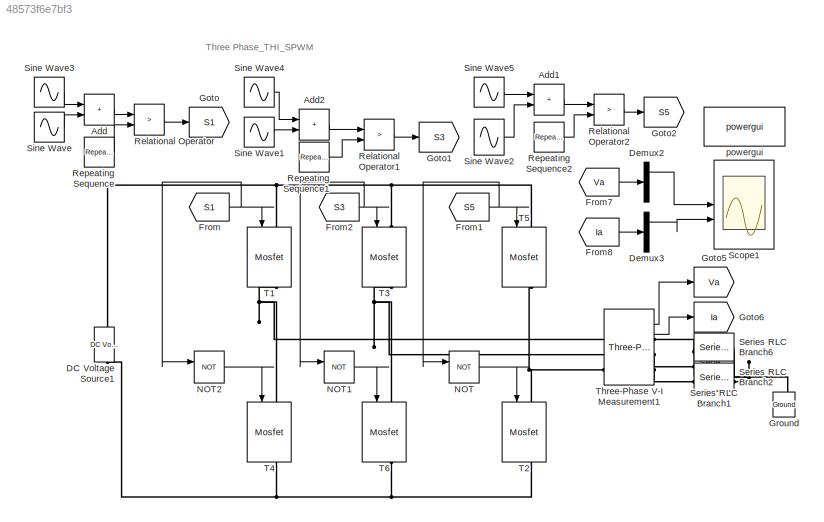
MODEL slx_48573f6e7bf3
KIND model
CONFIG AbsTol = auto
CONFIG EnableMultiTasking = off
CONFIG FixedStep = auto
CONFIG MaxStep = 1e-4
CONFIG MinStep = auto
CONFIG RelTol = 1e-3
CONFIG SampleTimeConstraint = Unconstrained
CONFIG SolverName = ode23t
CONFIG StartTime = 0.0
CONFIG StopTime = 0.1
BLOCK [Sum] Add
  IconShape = rectangular
BLOCK [Sum] Add1
  IconShape = rectangular
BLOCK [Sum] Add2
  IconShape = rectangular
BLOCK [Reference] DC Voltage Source1  REF=spsDCVoltageSourceLib/DC Voltage Source
  LibrarySourceBlock = sps_lib/Sources/DC Voltage Source
  SourceBlock = spsDCVoltageSourceLib/DC Voltage Source
  SourceType = DC Voltage Source
BLOCK [Demux] Demux2
  Outputs = 3
BLOCK [Demux] Demux3
  Outputs = 3
BLOCK [From] From
  GotoTag = S1
BLOCK [From] From1
  GotoTag = S5
BLOCK [From] From2
  GotoTag = S3
BLOCK [From] From7
  GotoTag = Va
BLOCK [From] From8
  GotoTag = Ia
BLOCK [Goto] Goto
  GotoTag = S1
BLOCK [Goto] Goto1
  GotoTag = S3
BLOCK [Goto] Goto2
  GotoTag = S5
BLOCK [Goto] Goto5
  GotoTag = Va
BLOCK [Goto] Goto6
  GotoTag = Ia
BLOCK [Reference] Ground  REF=spsGroundLib/Ground
  LibrarySourceBlock = sps_lib/Utilities/Ground
  NameLocation = right
  SourceBlock = spsGroundLib/Ground
  SourceType = Ground
BLOCK [Logic] NOT
  AllPortsSameDT = off
  Operator = NOT
  OutDataTypeStr = boolean
BLOCK [Logic] NOT1
  AllPortsSameDT = off
  Operator = NOT
  OutDataTypeStr = boolean
BLOCK [Logic] NOT2
  AllPortsSameDT = off
  Operator = NOT
  OutDataTypeStr = boolean
BLOCK [RelationalOperator] Relational Operator
  InputSameDT = off
  Operator = >
  OutDataTypeStr = boolean
  RndMeth = Simplest
BLOCK [RelationalOperator] Relational Operator1
  InputSameDT = off
  Operator = >
  OutDataTypeStr = boolean
  RndMeth = Simplest
BLOCK [RelationalOperator] Relational Operator2
  InputSameDT = off
  Operator = >
  OutDataTypeStr = boolean
  RndMeth = Simplest
BLOCK [Reference] Repeating Sequence  REF=simulink/Sources/Repeating
Sequence
  SourceBlock = simulink/Sources/Repeating\nSequence
  SourceType = Repeating table
BLOCK [Reference] Repeating Sequence1  REF=simulink/Sources/Repeating
Sequence
  SourceBlock = simulink/Sources/Repeating\nSequence
  SourceType = Repeating table
BLOCK [Reference] Repeating Sequence2  REF=simulink/Sources/Repeating
Sequence
  SourceBlock = simulink/Sources/Repeating\nSequence
  SourceType = Repeating table
BLOCK [Scope] Scope1
  Floating = off
  NumInputPorts = 2
  ScopeSpecificationString = Simulink.scopes.TimeScopeBlockCfg('CurrentConfiguration', extmgr.ConfigurationSet(extmgr.Configuration('Core','General UI',true),extmgr.Configuration('Core','Source UI',true),extmgr.Configuration('Sources','WiredSimulink',true,'DataLoggingVariableName','ScopeData1'),extmgr.Configuration('Visuals','Time Domain',true,'SerializedDisplays',{struct('MinYLimReal','-82.50809','MaxYLimReal','82.50809','YL...<+2118ch>
BLOCK [Reference] Series RLC Branch1  REF=spsSeriesRLCBranchLib/Series RLC Branch
  LibrarySourceBlock = sps_lib/Passives/Series RLC Branch
  SourceBlock = spsSeriesRLCBranchLib/Series RLC Branch
  SourceType = Series RLC Branch
BLOCK [Reference] Series RLC Branch2  REF=spsSeriesRLCBranchLib/Series RLC Branch
  LibrarySourceBlock = sps_lib/Passives/Series RLC Branch
  SourceBlock = spsSeriesRLCBranchLib/Series RLC Branch
  SourceType = Series RLC Branch
BLOCK [Reference] Series RLC Branch6  REF=spsSeriesRLCBranchLib/Series RLC Branch
  LibrarySourceBlock = sps_lib/Passives/Series RLC Branch
  SourceBlock = spsSeriesRLCBranchLib/Series RLC Branch
  SourceType = Series RLC Branch
BLOCK [Sin] Sine Wave
  Amplitude = 1.15
  Frequency = 100*pi
  SampleTime = 0
BLOCK [Sin] Sine Wave1
  Amplitude = 1.15
  Frequency = 100*pi
  Phase = 120*pi/180
  SampleTime = 0
BLOCK [Sin] Sine Wave2
  Amplitude = 1.15
  Frequency = 100*pi
  Phase = 240*pi/180
  SampleTime = 0
BLOCK [Sin] Sine Wave3
  Amplitude = 0.19
  Frequency = 100*pi*3
  SampleTime = 0
BLOCK [Sin] Sine Wave4
  Amplitude = 0.19
  Frequency = 100*pi*3
  Phase = 120*pi/180
  SampleTime = 0
BLOCK [Sin] Sine Wave5
  Amplitude = 0.19
  Frequency = 100*pi*3
  Phase = 240*pi/180
  SampleTime = 0
BLOCK [Reference] T1  REF=spsMosfetLib/Mosfet
  LibrarySourceBlock = sps_lib/Power Electronics/Mosfet
  NameLocation = left
  SourceBlock = spsMosfetLib/Mosfet
  SourceType = Mosfet
BLOCK [Reference] T2  REF=spsMosfetLib/Mosfet
  LibrarySourceBlock = sps_lib/Power Electronics/Mosfet
  NameLocation = left
  SourceBlock = spsMosfetLib/Mosfet
  SourceType = Mosfet
BLOCK [Reference] T3  REF=spsMosfetLib/Mosfet
  LibrarySourceBlock = sps_lib/Power Electronics/Mosfet
  NameLocation = left
  SourceBlock = spsMosfetLib/Mosfet
  SourceType = Mosfet
BLOCK [Reference] T4  REF=spsMosfetLib/Mosfet
  LibrarySourceBlock = sps_lib/Power Electronics/Mosfet
  NameLocation = left
  SourceBlock = spsMosfetLib/Mosfet
  SourceType = Mosfet
BLOCK [Reference] T5  REF=spsMosfetLib/Mosfet
  LibrarySourceBlock = sps_lib/Power Electronics/Mosfet
  NameLocation = left
  SourceBlock = spsMosfetLib/Mosfet
  SourceType = Mosfet
BLOCK [Reference] T6  REF=spsMosfetLib/Mosfet
  LibrarySourceBlock = sps_lib/Power Electronics/Mosfet
  NameLocation = left
  SourceBlock = spsMosfetLib/Mosfet
  SourceType = Mosfet
BLOCK [Reference] Three-Phase V-I Measurement1  REF=spsThreePhaseVIMeasurementLib/Three-Phase
V-I Measurement
  LibrarySourceBlock = sps_lib/Sensors and Measurements/Three-Phase\nV-I Measurement
  SourceBlock = spsThreePhaseVIMeasurementLib/Three-Phase\nV-I Measurement
  SourceType = Three-Phase VI Measurement
BLOCK [Reference] powergui  REF=sps_lib/powergui
  Priority = 1
  SourceBlock = sps_lib/powergui
  SourceType = PSB option menu block
ANNOTATION (root): Three Phase_THI_SPWM
LINE Add1:1 -> Relational Operator2:1
LINE Add2:1 -> Relational Operator1:1
LINE Add:1 -> Relational Operator:1
LINE Demux2:1 -> Scope1:1
LINE Demux3:1 -> Scope1:2
NET From1:1 -> NOT:1, T5:1
NET From2:1 -> NOT1:1, T3:1
LINE From7:1 -> Demux2:1
LINE From8:1 -> Demux3:1
NET From:1 -> NOT2:1, T1:1
LINE NOT1:1 -> T6:1
LINE NOT2:1 -> T4:1
LINE NOT:1 -> T2:1
LINE Relational Operator1:1 -> Goto1:1
LINE Relational Operator2:1 -> Goto2:1
LINE Relational Operator:1 -> Goto:1
LINE Repeating Sequence1:1 -> Relational Operator1:2
LINE Repeating Sequence2:1 -> Relational Operator2:2
LINE Repeating Sequence:1 -> Relational Operator:2
LINE Sine Wave1:1 -> Add2:2
LINE Sine Wave2:1 -> Add1:2
LINE Sine Wave3:1 -> Add:1
LINE Sine Wave4:1 -> Add2:1
LINE Sine Wave5:1 -> Add1:1
LINE Sine Wave:1 -> Add:2
LINE Three-Phase V-I Measurement1:1 -> Goto5:1
LINE Three-Phase V-I Measurement1:2 -> Goto6:1
PNET net1: DC Voltage Source1:LConn1 -- T2:RConn1 -- T4:RConn1 -- T6:RConn1
PNET net2: DC Voltage Source1:RConn1 -- T1:LConn1 -- T3:LConn1 -- T5:LConn1
PNET net3: Ground:LConn1 -- Series RLC Branch1:RConn1 -- Series RLC Branch2:RConn1 -- Series RLC Branch6:RConn1
PLINE Series RLC Branch1:LConn1 -- Three-Phase V-I Measurement1:RConn2
PLINE Series RLC Branch2:LConn1 -- Three-Phase V-I Measurement1:RConn3
PLINE Series RLC Branch6:LConn1 -- Three-Phase V-I Measurement1:RConn1
PNET net4: T1:RConn1 -- T4:LConn1 -- Three-Phase V-I Measurement1:LConn1
PNET net5: T2:LConn1 -- T5:RConn1 -- Three-Phase V-I Measurement1:LConn3
PNET net6: T3:RConn1 -- T6:LConn1 -- Three-Phase V-I Measurement1:LConn2
note: NET lines group one-source signal fan-out (src -> all destinations, sorted); 1:1 wires keep LINE; PNET lines group multi-terminal physical nets as a canonical sorted terminal list (undirected conserving connections); 2-terminal nets keep the pairwise PLINE form
